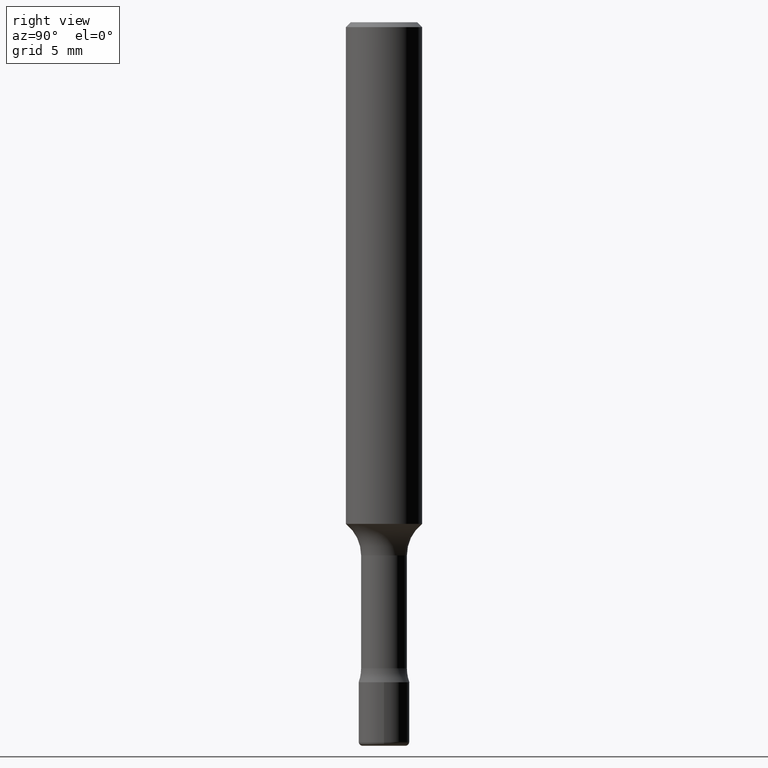
[diagram: clean part render]
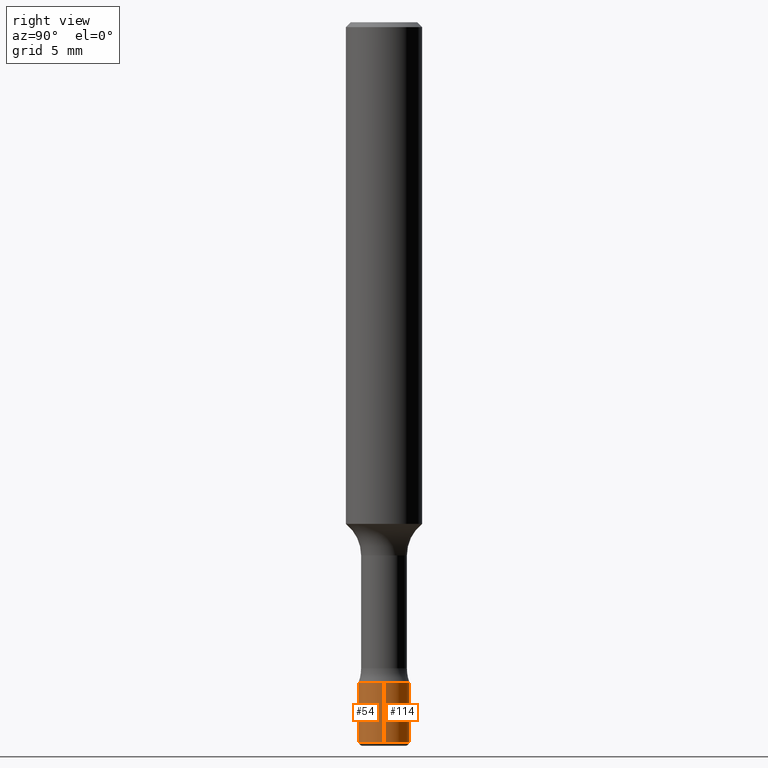
[diagram: same view with one multi-face feature highlighted, each face labeled with its STEP entity id]
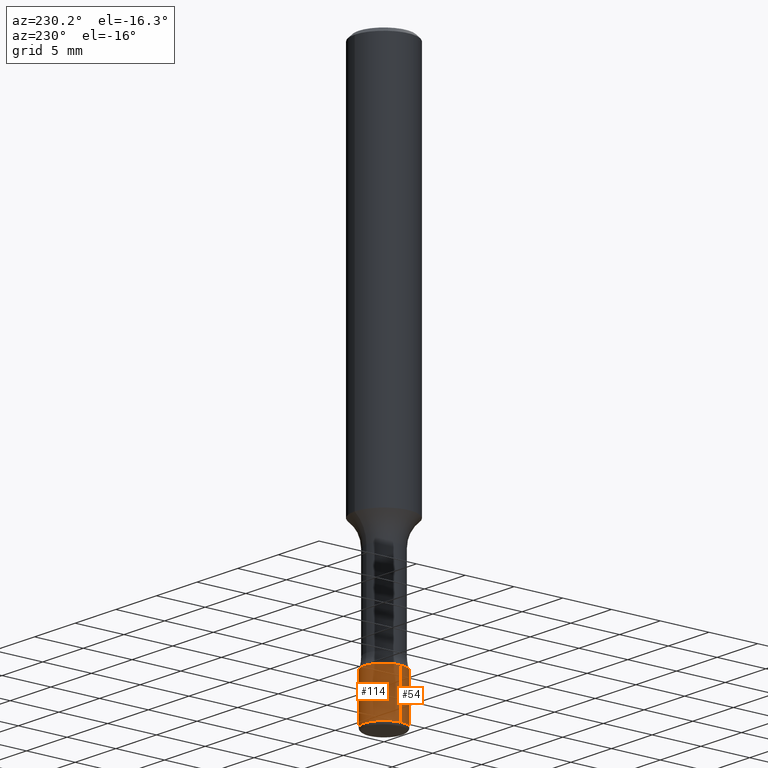
[diagram: same view with one multi-face feature highlighted, each face labeled with its STEP entity id]
A machine part, right view. The highlighted faces form ONE feature: a constant-radius fillet chain: 2 tangent blend faces with common blend radius 2.0002 mm. The faces share edges in the B-rep.
A second angle (auxiliary view) of the same feature is appended — it is thin or edge-on in the first view.
Their STEP definitions:
[1] entity #54 (Cylinder):
#5 = ORIENTED_EDGE ( 'NONE', *, *, #381, .T. ) ;
#16 = VECTOR ( 'NONE', #435, 39.37007874015748143 ) ;
#24 = AXIS2_PLACEMENT_3D ( 'NONE', #308, #177, #412 ) ;
#46 = LINE ( 'NONE', #254, #392 ) ;
#54 = ADVANCED_FACE ( 'NONE', ( #132 ), #142, .T. ) ;
#56 = DIRECTION ( 'NONE',  ( -2.445468806185136877E-29, 3.491481338843145188E-15, 1.000000000000000000 ) ) ;
#61 = DIRECTION ( 'NONE',  ( -2.445468806185136597E-29, 3.491481338843145583E-15, 1.000000000000000000 ) ) ;
#75 = ORIENTED_EDGE ( 'NONE', *, *, #137, .F. ) ;
#81 = DIRECTION ( 'NONE',  ( 1.000000000000000000, -6.982962677686261977E-15, 0.000000000000000000 ) ) ;
#82 = EDGE_CURVE ( 'NONE', #115, #240, #46, .T. ) ;
#115 = VERTEX_POINT ( 'NONE', #426 ) ;
#123 = CARTESIAN_POINT ( 'NONE',  ( 5.459020016047079569E-29, -7.794033792699553278E-15, -2.232299999999999951 ) ) ;
#132 = FACE_OUTER_BOUND ( 'NONE', #317, .T. ) ;
#137 = EDGE_CURVE ( 'NONE', #446, #223, #316, .T. ) ;
#142 = CYLINDRICAL_SURFACE ( 'NONE', #24, 0.07875000000000000056 ) ;
#158 = ORIENTED_EDGE ( 'NONE', *, *, #82, .T. ) ;
#177 = DIRECTION ( 'NONE',  ( -2.445468806185136597E-29, 3.491481338843145583E-15, 1.000000000000000000 ) ) ;
#196 = ORIENTED_EDGE ( 'NONE', *, *, #324, .F. ) ;
#213 = AXIS2_PLACEMENT_3D ( 'NONE', #123, #479, #81 ) ;
#222 = DIRECTION ( 'NONE',  ( 1.000000000000000000, -6.982962677686261977E-15, 0.000000000000000000 ) ) ;
#223 = VERTEX_POINT ( 'NONE', #349 ) ;
#240 = VERTEX_POINT ( 'NONE', #385 ) ;
#254 = CARTESIAN_POINT ( 'NONE',  ( 0.07875000000000000056, -5.499083108677934443E-16, 3.839989210939299016E-30 ) ) ;
#308 = CARTESIAN_POINT ( 'NONE',  ( 0.000000000000000000, 0.000000000000000000, 0.000000000000000000 ) ) ;
#316 = LINE ( 'NONE', #515, #16 ) ;
#317 = EDGE_LOOP ( 'NONE', ( #75, #5, #158, #196 ) ) ;
#324 = EDGE_CURVE ( 'NONE', #223, #240, #463, .T. ) ;
#349 = CARTESIAN_POINT ( 'NONE',  ( -0.07875000000000000056, -6.911344790378541938E-15, -2.047200000000000131 ) ) ;
#367 = CARTESIAN_POINT ( 'NONE',  ( -0.07874999999999995892, -7.234481388288473687E-15, -2.232299999999999951 ) ) ;
#380 = CARTESIAN_POINT ( 'NONE',  ( 5.006363740022211680E-29, -7.147760596879688202E-15, -2.047200000000000131 ) ) ;
#381 = EDGE_CURVE ( 'NONE', #446, #115, #495, .T. ) ;
#385 = CARTESIAN_POINT ( 'NONE',  ( 0.07875000000000000056, -7.697668907747481548E-15, -2.047200000000000131 ) ) ;
#392 = VECTOR ( 'NONE', #56, 39.37007874015748143 ) ;
#412 = DIRECTION ( 'NONE',  ( 1.000000000000000000, -6.982962677686265922E-15, 4.876176775795935232E-29 ) ) ;
#426 = CARTESIAN_POINT ( 'NONE',  ( 0.07874999999999995892, -8.343942103567346623E-15, -2.232299999999999951 ) ) ;
#435 = DIRECTION ( 'NONE',  ( -2.445468806185136877E-29, 3.491481338843145188E-15, 1.000000000000000000 ) ) ;
#446 = VERTEX_POINT ( 'NONE', #367 ) ;
#463 = CIRCLE ( 'NONE', #516, 0.07875000000000000056 ) ;
#479 = DIRECTION ( 'NONE',  ( -2.445468806185136597E-29, 3.491481338843145583E-15, 1.000000000000000000 ) ) ;
#495 = CIRCLE ( 'NONE', #213, 0.07875000000000000056 ) ;
#515 = CARTESIAN_POINT ( 'NONE',  ( -0.07875000000000000056, 5.595524044110789003E-16, -3.873661383575737792E-30 ) ) ;
#516 = AXIS2_PLACEMENT_3D ( 'NONE', #380, #61, #222 ) ;
[2] entity #114 (Cylinder):
#16 = VECTOR ( 'NONE', #435, 39.37007874015748143 ) ;
#38 = ORIENTED_EDGE ( 'NONE', *, *, #137, .T. ) ;
#46 = LINE ( 'NONE', #254, #392 ) ;
#56 = DIRECTION ( 'NONE',  ( -2.445468806185136877E-29, 3.491481338843145188E-15, 1.000000000000000000 ) ) ;
#67 = CIRCLE ( 'NONE', #411, 0.07875000000000000056 ) ;
#82 = EDGE_CURVE ( 'NONE', #115, #240, #46, .T. ) ;
#94 = EDGE_CURVE ( 'NONE', #115, #446, #67, .T. ) ;
#100 = DIRECTION ( 'NONE',  ( -2.445468806185136597E-29, 3.491481338843145583E-15, 1.000000000000000000 ) ) ;
#104 = EDGE_LOOP ( 'NONE', ( #478, #38, #439, #327 ) ) ;
#114 = ADVANCED_FACE ( 'NONE', ( #303 ), #455, .T. ) ;
#115 = VERTEX_POINT ( 'NONE', #426 ) ;
#137 = EDGE_CURVE ( 'NONE', #446, #223, #316, .T. ) ;
#187 = AXIS2_PLACEMENT_3D ( 'NONE', #304, #388, #311 ) ;
#203 = CARTESIAN_POINT ( 'NONE',  ( 0.000000000000000000, 0.000000000000000000, 0.000000000000000000 ) ) ;
#218 = CARTESIAN_POINT ( 'NONE',  ( 5.459020016047079569E-29, -7.794033792699553278E-15, -2.232299999999999951 ) ) ;
#223 = VERTEX_POINT ( 'NONE', #349 ) ;
#232 = EDGE_CURVE ( 'NONE', #240, #223, #420, .T. ) ;
#240 = VERTEX_POINT ( 'NONE', #385 ) ;
#254 = CARTESIAN_POINT ( 'NONE',  ( 0.07875000000000000056, -5.499083108677934443E-16, 3.839989210939299016E-30 ) ) ;
#256 = DIRECTION ( 'NONE',  ( 1.000000000000000000, -6.982962677686265922E-15, 4.876176775795935232E-29 ) ) ;
#270 = AXIS2_PLACEMENT_3D ( 'NONE', #203, #100, #256 ) ;
#303 = FACE_OUTER_BOUND ( 'NONE', #104, .T. ) ;
#304 = CARTESIAN_POINT ( 'NONE',  ( 5.006363740022211680E-29, -7.147760596879688202E-15, -2.047200000000000131 ) ) ;
#306 = DIRECTION ( 'NONE',  ( 1.000000000000000000, -6.982962677686261977E-15, 0.000000000000000000 ) ) ;
#311 = DIRECTION ( 'NONE',  ( 1.000000000000000000, -6.982962677686261977E-15, 0.000000000000000000 ) ) ;
#316 = LINE ( 'NONE', #515, #16 ) ;
#327 = ORIENTED_EDGE ( 'NONE', *, *, #82, .F. ) ;
#349 = CARTESIAN_POINT ( 'NONE',  ( -0.07875000000000000056, -6.911344790378541938E-15, -2.047200000000000131 ) ) ;
#367 = CARTESIAN_POINT ( 'NONE',  ( -0.07874999999999995892, -7.234481388288473687E-15, -2.232299999999999951 ) ) ;
#378 = DIRECTION ( 'NONE',  ( -2.445468806185136597E-29, 3.491481338843145583E-15, 1.000000000000000000 ) ) ;
#385 = CARTESIAN_POINT ( 'NONE',  ( 0.07875000000000000056, -7.697668907747481548E-15, -2.047200000000000131 ) ) ;
#388 = DIRECTION ( 'NONE',  ( -2.445468806185136597E-29, 3.491481338843145583E-15, 1.000000000000000000 ) ) ;
#392 = VECTOR ( 'NONE', #56, 39.37007874015748143 ) ;
#411 = AXIS2_PLACEMENT_3D ( 'NONE', #218, #378, #306 ) ;
#420 = CIRCLE ( 'NONE', #187, 0.07875000000000000056 ) ;
#426 = CARTESIAN_POINT ( 'NONE',  ( 0.07874999999999995892, -8.343942103567346623E-15, -2.232299999999999951 ) ) ;
#435 = DIRECTION ( 'NONE',  ( -2.445468806185136877E-29, 3.491481338843145188E-15, 1.000000000000000000 ) ) ;
#439 = ORIENTED_EDGE ( 'NONE', *, *, #232, .F. ) ;
#446 = VERTEX_POINT ( 'NONE', #367 ) ;
#455 = CYLINDRICAL_SURFACE ( 'NONE', #270, 0.07875000000000000056 ) ;
#478 = ORIENTED_EDGE ( 'NONE', *, *, #94, .T. ) ;
#515 = CARTESIAN_POINT ( 'NONE',  ( -0.07875000000000000056, 5.595524044110789003E-16, -3.873661383575737792E-30 ) ) ;